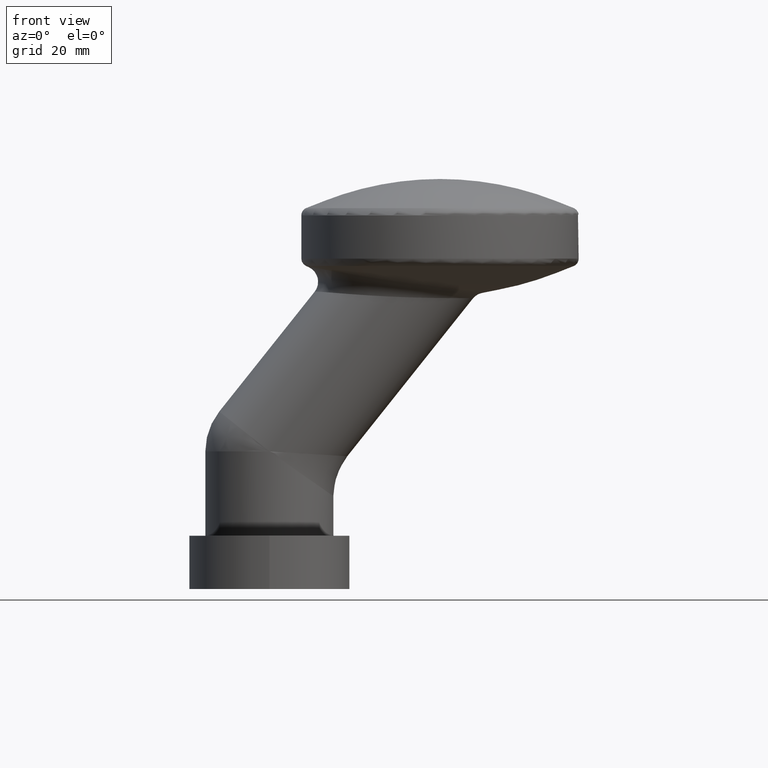
[diagram: clean part render]
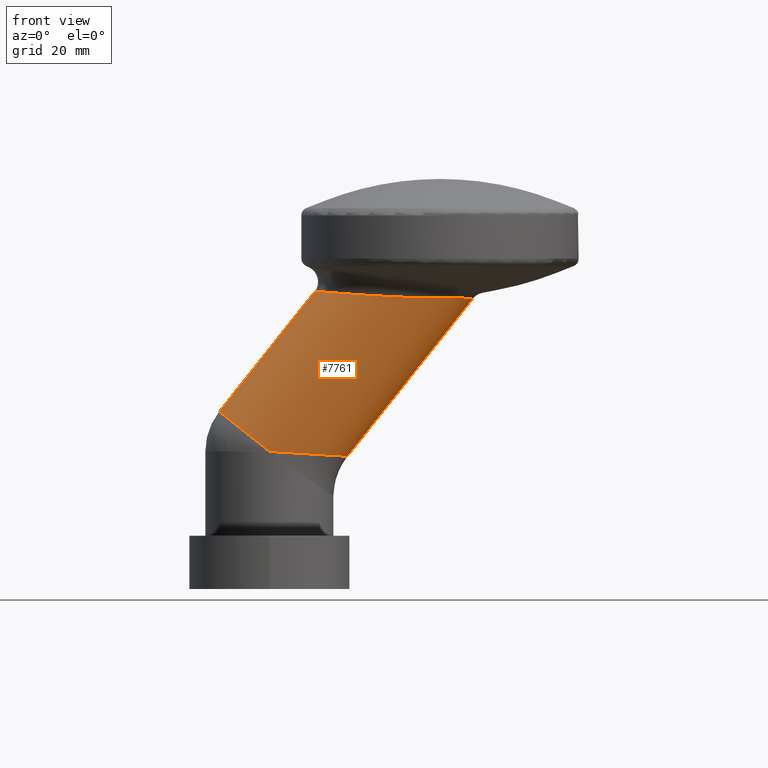
[diagram: same view with one face highlighted and labeled with its STEP entity id]
A machine part, front view. The second image highlights one B-rep face of the part: STEP entity #7761.
In plain terms, the highlighted cylindrical surface (partial cylindrical patch) has radius 12 mm, axis along (0.6229, 0, 0.7823).
Its self-contained STEP definition (entity closure, byte-faithful):
#217 = ORIENTED_EDGE ( 'NONE', *, *, #3115, .T. ) ;
#231 = CARTESIAN_POINT ( 'NONE',  ( 14.61196063930407085, -1.249999999999996003, 14.89370007115426198 ) ) ;
#557 = CARTESIAN_POINT ( 'NONE',  ( 14.84552569842835545, -11.18407710946157607, 45.32825826794714175 ) ) ;
#603 = CARTESIAN_POINT ( 'NONE',  ( 14.09670101652060659, -10.73361447066173113, 45.38527265837177538 ) ) ;
#661 = CARTESIAN_POINT ( 'NONE',  ( 27.62788758453981330, -12.70373738545827713, 44.64578669781393927 ) ) ;
#710 = CARTESIAN_POINT ( 'NONE',  ( 12.03561340307901872, -9.073745535268091800, 45.54617432539239985 ) ) ;
#764 = DIRECTION ( 'NONE',  ( 0.7823366133913279841, 0.000000000000000000, -0.6228558608116229189 ) ) ;
#900 = CARTESIAN_POINT ( 'NONE',  ( 6.452597071380310467, -1.249999999999996003, 4.645150988160804850 ) ) ;
#1046 = ORIENTED_EDGE ( 'NONE', *, *, #14001, .F. ) ;
#1234 = ORIENTED_EDGE ( 'NONE', *, *, #13319, .T. ) ;
#1412 = DIRECTION ( 'NONE',  ( 0.7823366133913279841, 0.000000000000000000, -0.6228558608116230300 ) ) ;
#1746 = CARTESIAN_POINT ( 'NONE',  ( 37.56863493030727597, -4.705973869096203188, 44.53175917384137250 ) ) ;
#2104 = CARTESIAN_POINT ( 'NONE',  ( 8.769544035897864021, -3.453612222531909914, 45.77264829845125860 ) ) ;
#2377 = VERTEX_POINT ( 'NONE', #9006 ) ;
#2828 = VECTOR ( 'NONE', #13557, 1000.000000000000114 ) ;
#2967 = CARTESIAN_POINT ( 'NONE',  ( 37.02167630779754859, -5.911908700624965540, 44.54205416493485359 ) ) ;
#3069 = CARTESIAN_POINT ( 'NONE',  ( 32.84852915673760521, -10.38530240711265407, 44.55800108498763734 ) ) ;
#3115 = EDGE_CURVE ( 'NONE', #6497, #9949, #9612, .T. ) ;
#3171 = CARTESIAN_POINT ( 'NONE',  ( 10.85049765719299231, -7.791786311920949615, 45.63900792027703801 ) ) ;
#3273 = CARTESIAN_POINT ( 'NONE',  ( 8.677435210529099052, -3.022686209604104057, 45.77373406939518929 ) ) ;
#4131 = CARTESIAN_POINT ( 'NONE',  ( 33.92930609590038671, -9.612897751803430424, 44.55188746093141816 ) ) ;
#4184 = CARTESIAN_POINT ( 'NONE',  ( 17.23011597311137066, -12.27262769263969489, 45.15693450800407760 ) ) ;
#4353 = CARTESIAN_POINT ( 'NONE',  ( 21.51469775737632872, -13.20241989676337013, 44.89546381181049384 ) ) ;
#4554 = CARTESIAN_POINT ( 'NONE',  ( 11.72650617227147052, -8.764492438411306097, 45.57052444307747407 ) ) ;
#4609 = ORIENTED_EDGE ( 'NONE', *, *, #6525, .T. ) ;
#5024 = CARTESIAN_POINT ( 'NONE',  ( 14.61196063930407085, -1.249999999999996003, 14.89370007115426198 ) ) ;
#5135 = B_SPLINE_CURVE_WITH_KNOTS ( 'NONE', 3,
 ( #8985, #10264, #5449, #7871, #1746, #6779, #2967, #12752, #10212, #7918, #15299, #6640, #4131, #3069, #12698, #7816, #12850, #5404, #14007, #9039, #6684, #661, #15249, #13951, #9142, #5351, #14052, #11485, #4353, #15150, #12891, #4184, #9090, #557, #603, #6741, #7966, #710, #4554, #3171, #5710, #10567, #13142, #2104, #3273, #5818, #9453, #6892 ),
 .UNSPECIFIED., .F., .F.,
 ( 4, 2, 2, 2, 2, 2, 2, 2, 2, 2, 2, 2, 2, 2, 2, 2, 2, 2, 2, 2, 2, 2, 2, 4 ),
 ( 1.734723475976806517E-18, 0.002626756209280471915, 0.003940134313920705053, 0.005253512418560938625, 0.006566890523201173065, 0.007880268627841404902, 0.01050702483712187552, 0.01182040294176211516, 0.01313378104640235133, 0.01444715915104258924, 0.01576053725568282715, 0.01838729346496329950, 0.01970067156960353047, 0.02101404967424376144, 0.02364080588352421991, 0.02626756209280467491, 0.02889431830208513338, 0.03152107451136558491, 0.03283445261600581588, 0.03414783072064604685, 0.03677458692992650185, 0.03940134313920694992, 0.04071472124384718089, 0.04202809934848740492 ),
 .UNSPECIFIED. ) ;
#5351 = CARTESIAN_POINT ( 'NONE',  ( 24.15777932823457164, -13.22447198872876761, 44.76968441330730997 ) ) ;
#5404 = CARTESIAN_POINT ( 'NONE',  ( 30.53841693035523264, -11.66755308028007398, 44.58355516255170414 ) ) ;
#5449 = CARTESIAN_POINT ( 'NONE',  ( 38.06355317217454370, -3.010627691343550794, 44.50745877973117359 ) ) ;
#5677 = DIRECTION ( 'NONE',  ( 0.6228558608116229189, 0.000000000000000000, 0.7823366133913279841 ) ) ;
#5710 = CARTESIAN_POINT ( 'NONE',  ( 10.33370731325133818, -7.083351261388916242, 45.67869471705078865 ) ) ;
#5818 = CARTESIAN_POINT ( 'NONE',  ( 8.548102416475598986, -2.142269094932529594, 45.76921919823863760 ) ) ;
#6497 = VERTEX_POINT ( 'NONE', #13037 ) ;
#6525 = EDGE_CURVE ( 'NONE', #6950, #12341, #6826, .T. ) ;
#6640 = CARTESIAN_POINT ( 'NONE',  ( 34.59689402391003199, -9.039508073940275779, 44.55061178750699469 ) ) ;
#6684 = CARTESIAN_POINT ( 'NONE',  ( 28.89553617511114680, -12.31305079582803863, 44.61487465956105325 ) ) ;
#6741 = CARTESIAN_POINT ( 'NONE',  ( 13.03156610794619219, -9.944927471851679357, 45.46795521296525067 ) ) ;
#6779 = CARTESIAN_POINT ( 'NONE',  ( 37.22101522080296832, -5.519843420791125332, 44.53941115717538679 ) ) ;
#6826 = LINE ( 'NONE', #900, #2828 ) ;
#6892 = CARTESIAN_POINT ( 'NONE',  ( 8.504464339050963773, -1.249999999999997558, 45.75458336301657880 ) ) ;
#6950 = VERTEX_POINT ( 'NONE', #5024 ) ;
#7323 = DIRECTION ( 'NONE',  ( 0.6228558608116229189, 0.000000000000000000, 0.7823366133913280951 ) ) ;
#7368 = VECTOR ( 'NONE', #5677, 1000.000000000000114 ) ;
#7761 = ADVANCED_FACE ( 'NONE', ( #12896 ), #15754, .T. ) ;
#7816 = CARTESIAN_POINT ( 'NONE',  ( 31.71665627041601354, -11.07576673221830532, 44.56795102612112203 ) ) ;
#7871 = CARTESIAN_POINT ( 'NONE',  ( 37.71641940667026205, -4.283560976931974018, 44.52671290016294847 ) ) ;
#7918 = CARTESIAN_POINT ( 'NONE',  ( 35.79626719547616887, -7.738997104015793660, 44.54860280055542177 ) ) ;
#7966 = CARTESIAN_POINT ( 'NONE',  ( 12.68704035699392918, -9.663190494421902699, 45.49497534535723275 ) ) ;
#8017 = DIRECTION ( 'NONE',  ( 0.6228558608116229189, 0.000000000000000000, 0.7823366133913280951 ) ) ;
#8985 = CARTESIAN_POINT ( 'NONE',  ( 38.15400198352779171, -1.249999999999996003, 44.46362476217183968 ) ) ;
#9006 = CARTESIAN_POINT ( 'NONE',  ( 8.504464339050963773, -1.249999999999997558, 45.75458336301657880 ) ) ;
#9039 = CARTESIAN_POINT ( 'NONE',  ( 29.31478344071039288, -12.16651270273190732, 44.60580889458750420 ) ) ;
#9090 = CARTESIAN_POINT ( 'NONE',  ( 16.41110108260061295, -11.95336462502523744, 45.21417291034846642 ) ) ;
#9142 = CARTESIAN_POINT ( 'NONE',  ( 25.03530110897159844, -13.15238972486284652, 44.73385042914077303 ) ) ;
#9453 = CARTESIAN_POINT ( 'NONE',  ( 8.511648753071327178, -1.696345155864903420, 45.76360732905356343 ) ) ;
#9588 = EDGE_LOOP ( 'NONE', ( #1046, #217, #1234, #4609, #12642 ) ) ;
#9612 = CIRCLE ( 'NONE', #14440, 12.00000000000000533 ) ;
#9705 = CARTESIAN_POINT ( 'NONE',  ( 38.15400198352779171, -1.249999999999996003, 44.46362476217183968 ) ) ;
#9839 = CARTESIAN_POINT ( 'NONE',  ( 14.61196063930406375, -8.279437251522860919, 14.89370007115426020 ) ) ;
#9949 = VERTEX_POINT ( 'NONE', #10824 ) ;
#10212 = CARTESIAN_POINT ( 'NONE',  ( 36.33109482382221245, -7.034182490703406287, 44.54698979317645779 ) ) ;
#10264 = CARTESIAN_POINT ( 'NONE',  ( 38.17417536752781615, -2.141440241376779685, 44.48896349286732033 ) ) ;
#10299 = AXIS2_PLACEMENT_3D ( 'NONE', #12993, #8017, #764 ) ;
#10567 = CARTESIAN_POINT ( 'NONE',  ( 9.460174759692026925, -5.530427961478123322, 45.74005741618643128 ) ) ;
#10824 = CARTESIAN_POINT ( 'NONE',  ( -1.261470061101514639E-15, -13.25000000000000711, 15.80647658047159432 ) ) ;
#11485 = CARTESIAN_POINT ( 'NONE',  ( 22.38947426693498599, -13.25767366114456536, 44.85027769034376632 ) ) ;
#11488 = EDGE_CURVE ( 'NONE', #12341, #2377, #5135, .T. ) ;
#11707 =( BOUNDED_CURVE ( )  B_SPLINE_CURVE ( 3, ( #14644, #12346, #9839, #231 ),
 .UNSPECIFIED., .F., .F. ) 
 B_SPLINE_CURVE_WITH_KNOTS ( ( 4, 4 ),
 ( 1.570796326794896780, 3.141592653589793116 ),
 .UNSPECIFIED. ) 
 CURVE ( )  GEOMETRIC_REPRESENTATION_ITEM ( )  RATIONAL_B_SPLINE_CURVE ( ( 1.000000000000000000, 0.8047378541243650485, 0.8047378541243650485, 1.000000000000000000 ) ) 
 REPRESENTATION_ITEM ( '' )  );
#12114 = CARTESIAN_POINT ( 'NONE',  ( -8.673617379884035472E-16, -1.249999999999999334, 15.80647658047159432 ) ) ;
#12341 = VERTEX_POINT ( 'NONE', #9705 ) ;
#12346 = CARTESIAN_POINT ( 'NONE',  ( 8.559488369642483718, -13.25000000000000000, 15.27178448072907102 ) ) ;
#12642 = ORIENTED_EDGE ( 'NONE', *, *, #11488, .T. ) ;
#12698 = CARTESIAN_POINT ( 'NONE',  ( 32.47571509798696354, -10.62720757396834337, 44.56073132825233785 ) ) ;
#12752 = CARTESIAN_POINT ( 'NONE',  ( 36.57672658303645363, -6.669084335675139030, 44.54584403319826436 ) ) ;
#12850 = CARTESIAN_POINT ( 'NONE',  ( 31.32900379897454002, -11.28344436778589710, 44.57244627986552388 ) ) ;
#12891 = CARTESIAN_POINT ( 'NONE',  ( 18.92542689195676786, -12.78045683977789793, 45.04585019741510621 ) ) ;
#12896 = FACE_OUTER_BOUND ( 'NONE', #9588, .T. ) ;
#12993 = CARTESIAN_POINT ( 'NONE',  ( -2.935442289315632891, -1.249999999999999334, 12.11942131790028121 ) ) ;
#13037 = CARTESIAN_POINT ( 'NONE',  ( -9.388039360695943358, -1.249999999999997558, 23.28074691021107157 ) ) ;
#13142 = CARTESIAN_POINT ( 'NONE',  ( 9.122841200337504119, -4.720359329394788084, 45.76031931996306668 ) ) ;
#13319 = EDGE_CURVE ( 'NONE', #9949, #6950, #11707, .T. ) ;
#13557 = DIRECTION ( 'NONE',  ( 0.6228558608116229189, 0.000000000000000000, 0.7823366133913279841 ) ) ;
#13951 = CARTESIAN_POINT ( 'NONE',  ( 25.47137551481046458, -13.10073122334541473, 44.71724103281751894 ) ) ;
#14001 = EDGE_CURVE ( 'NONE', #6497, #2377, #14238, .T. ) ;
#14007 = CARTESIAN_POINT ( 'NONE',  ( 30.13547886485673644, -11.84397669473102965, 44.59016800385809631 ) ) ;
#14052 = CARTESIAN_POINT ( 'NONE',  ( 23.71478247579928578, -13.24489076346293892, 44.78898215559598839 ) ) ;
#14238 = LINE ( 'NONE', #15568, #7368 ) ;
#14440 = AXIS2_PLACEMENT_3D ( 'NONE', #12114, #7323, #1412 ) ;
#14644 = CARTESIAN_POINT ( 'NONE',  ( -1.261470061101514639E-15, -13.25000000000000711, 15.80647658047159432 ) ) ;
#15150 = CARTESIAN_POINT ( 'NONE',  ( 19.78268011278587934, -12.96376497270635042, 44.99324698663242117 ) ) ;
#15249 = CARTESIAN_POINT ( 'NONE',  ( 26.77162096569148630, -12.89938296521002137, 44.67127279952380547 ) ) ;
#15299 = CARTESIAN_POINT ( 'NONE',  ( 35.50682691840383853, -8.078447671721660228, 44.54906978605818324 ) ) ;
#15568 = CARTESIAN_POINT ( 'NONE',  ( -12.32348165001157625, -1.249999999999997558, 19.59369164763975846 ) ) ;
#15754 = CYLINDRICAL_SURFACE ( 'NONE', #10299, 12.00000000000000711 ) ;